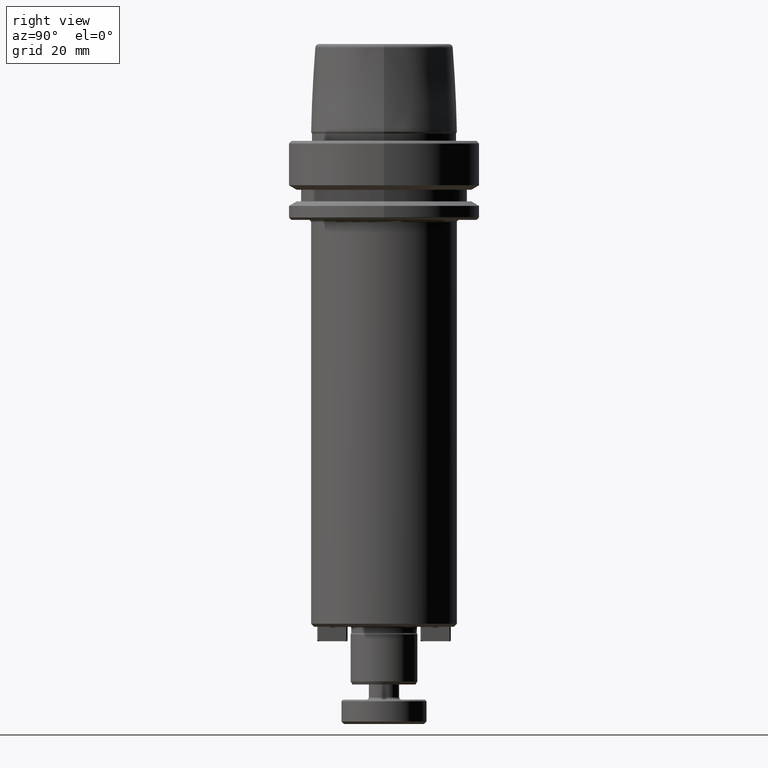
[diagram: clean part render]
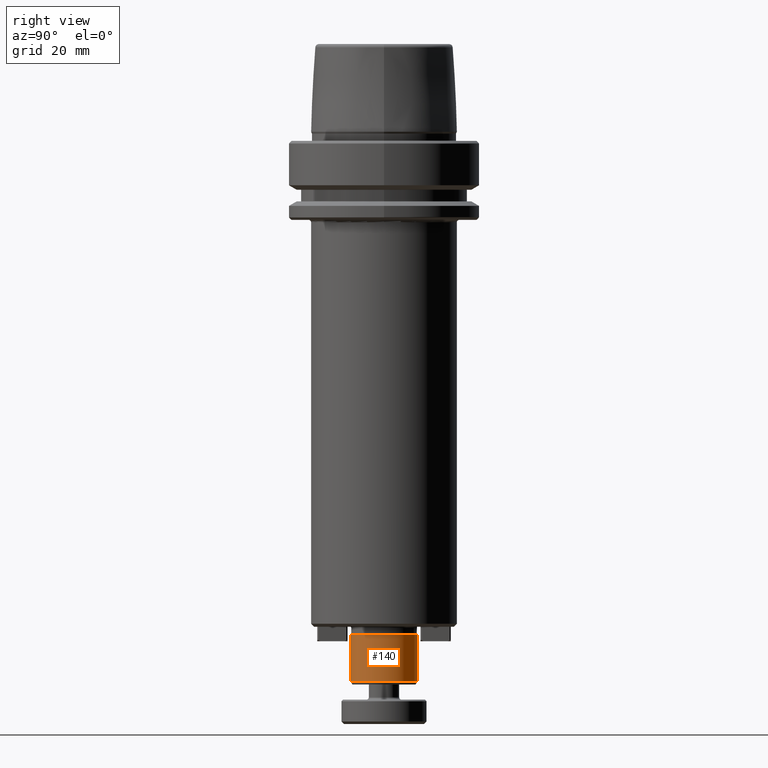
[diagram: same view with one face highlighted and labeled with its STEP entity id]
A machine part, right view. The second image highlights one B-rep face of the part: STEP entity #140.
In plain terms, the highlighted cylindrical surface (edge-blend (fillet) strip) has radius 11 mm, axis along (-0, 0, -1).
Its self-contained STEP definition (entity closure, byte-faithful):
#74 = DIRECTION ( 'NONE',  ( 0.0000000000000000000, 1.000000000000000000, 0.0000000000000000000 ) ) ;
#89 = DIRECTION ( 'NONE',  ( -0.0000000000000000000, 4.802536467244522200E-017, -1.000000000000000000 ) ) ;
#128 = EDGE_CURVE ( 'NONE', #2394, #1630, #1648, .T. ) ;
#140 = ADVANCED_FACE ( 'NONE', ( #186 ), #1608, .T. ) ;
#186 = FACE_OUTER_BOUND ( 'NONE', #1568, .T. ) ;
#202 = AXIS2_PLACEMENT_3D ( 'NONE', #2689, #1377, #74 ) ;
#228 = CIRCLE ( 'NONE', #1351, 10.99999999999999300 ) ;
#415 = LINE ( 'NONE', #1011, #1517 ) ;
#542 = CARTESIAN_POINT ( 'NONE',  ( 0.0000000000000000000, 7.347880794884116800E-015, -179.0000000000000000 ) ) ;
#681 = EDGE_CURVE ( 'NONE', #2800, #932, #415, .T. ) ;
#703 = CARTESIAN_POINT ( 'NONE',  ( 1.347111479062087600E-015, -10.99999999999998600, -177.9607695154586800 ) ) ;
#932 = VERTEX_POINT ( 'NONE', #703 ) ;
#1011 = CARTESIAN_POINT ( 'NONE',  ( 1.347111479062087600E-015, -10.99999999999998600, -179.0000000000000000 ) ) ;
#1135 = DIRECTION ( 'NONE',  ( -0.0000000000000000000, 4.802536467244522200E-017, -1.000000000000000000 ) ) ;
#1351 = AXIS2_PLACEMENT_3D ( 'NONE', #1396, #89, #1618 ) ;
#1377 = DIRECTION ( 'NONE',  ( -0.0000000000000000000, 4.802536467244522200E-017, -1.000000000000000000 ) ) ;
#1396 = CARTESIAN_POINT ( 'NONE',  ( 0.0000000000000000000, 6.555462277788771400E-015, -162.5000000000000000 ) ) ;
#1517 = VECTOR ( 'NONE', #2328, 1000.000000000000000 ) ;
#1568 = EDGE_LOOP ( 'NONE', ( #1644, #2148, #2206, #1904 ) ) ;
#1573 = VECTOR ( 'NONE', #1135, 1000.000000000000000 ) ;
#1608 = CYLINDRICAL_SURFACE ( 'NONE', #1750, 10.99999999999999300 ) ;
#1618 = DIRECTION ( 'NONE',  ( 0.0000000000000000000, 1.000000000000000000, 0.0000000000000000000 ) ) ;
#1630 = VERTEX_POINT ( 'NONE', #2098 ) ;
#1644 = ORIENTED_EDGE ( 'NONE', *, *, #2377, .T. ) ;
#1648 = LINE ( 'NONE', #2440, #1573 ) ;
#1750 = AXIS2_PLACEMENT_3D ( 'NONE', #542, #2004, #2494 ) ;
#1904 = ORIENTED_EDGE ( 'NONE', *, *, #128, .F. ) ;
#2004 = DIRECTION ( 'NONE',  ( -0.0000000000000000000, 4.802536467244522200E-017, -1.000000000000000000 ) ) ;
#2055 = CARTESIAN_POINT ( 'NONE',  ( 0.0000000000000000000, 11.00000000000000000, -162.5000000000000000 ) ) ;
#2098 = CARTESIAN_POINT ( 'NONE',  ( 0.0000000000000000000, 11.00000000000000000, -177.9607695154586800 ) ) ;
#2148 = ORIENTED_EDGE ( 'NONE', *, *, #681, .T. ) ;
#2206 = ORIENTED_EDGE ( 'NONE', *, *, #2359, .F. ) ;
#2328 = DIRECTION ( 'NONE',  ( -0.0000000000000000000, 4.802536467244522200E-017, -1.000000000000000000 ) ) ;
#2359 = EDGE_CURVE ( 'NONE', #1630, #932, #2540, .T. ) ;
#2377 = EDGE_CURVE ( 'NONE', #2394, #2800, #228, .T. ) ;
#2394 = VERTEX_POINT ( 'NONE', #2055 ) ;
#2420 = CARTESIAN_POINT ( 'NONE',  ( 1.347111479062087600E-015, -10.99999999999998600, -162.5000000000000000 ) ) ;
#2440 = CARTESIAN_POINT ( 'NONE',  ( 0.0000000000000000000, 11.00000000000000000, -179.0000000000000000 ) ) ;
#2494 = DIRECTION ( 'NONE',  ( 0.0000000000000000000, 1.000000000000000000, 0.0000000000000000000 ) ) ;
#2540 = CIRCLE ( 'NONE', #202, 10.99999999999999300 ) ;
#2689 = CARTESIAN_POINT ( 'NONE',  ( 0.0000000000000000000, 7.297971371885297400E-015, -177.9607695154586800 ) ) ;
#2800 = VERTEX_POINT ( 'NONE', #2420 ) ;